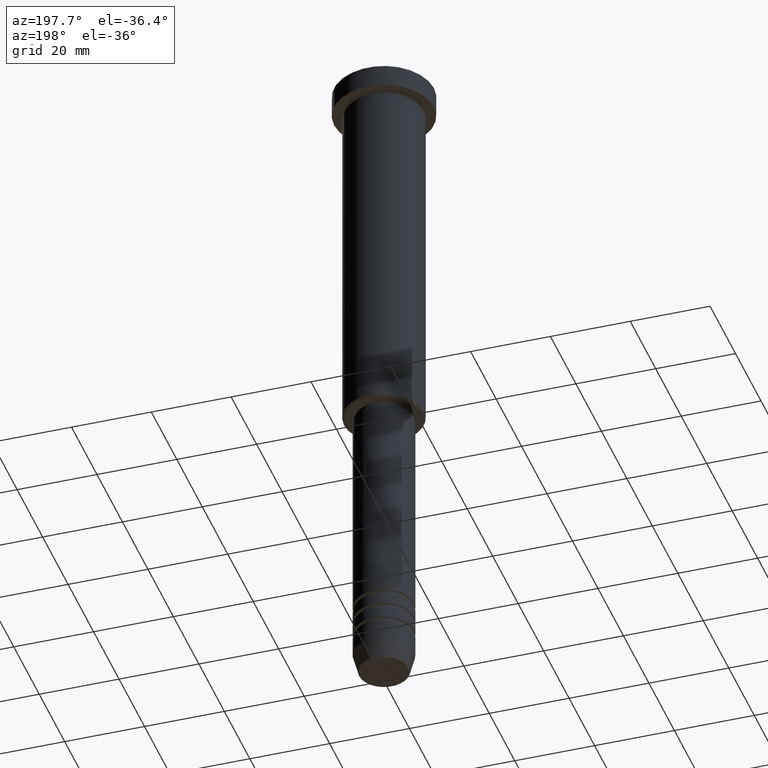
[diagram: clean part render]
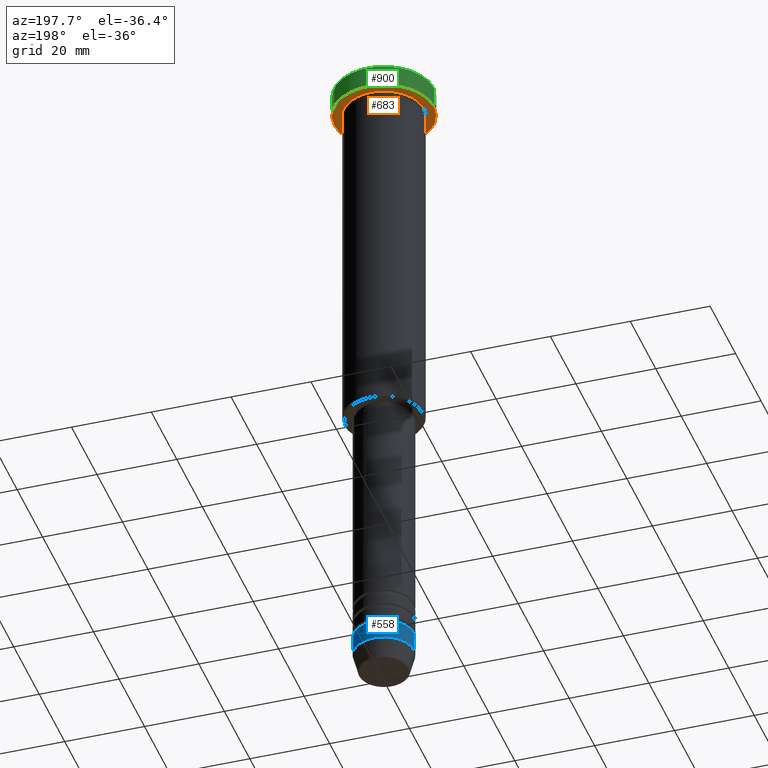
[diagram: same view with three faces highlighted in distinct colors, each labeled with its STEP entity id]
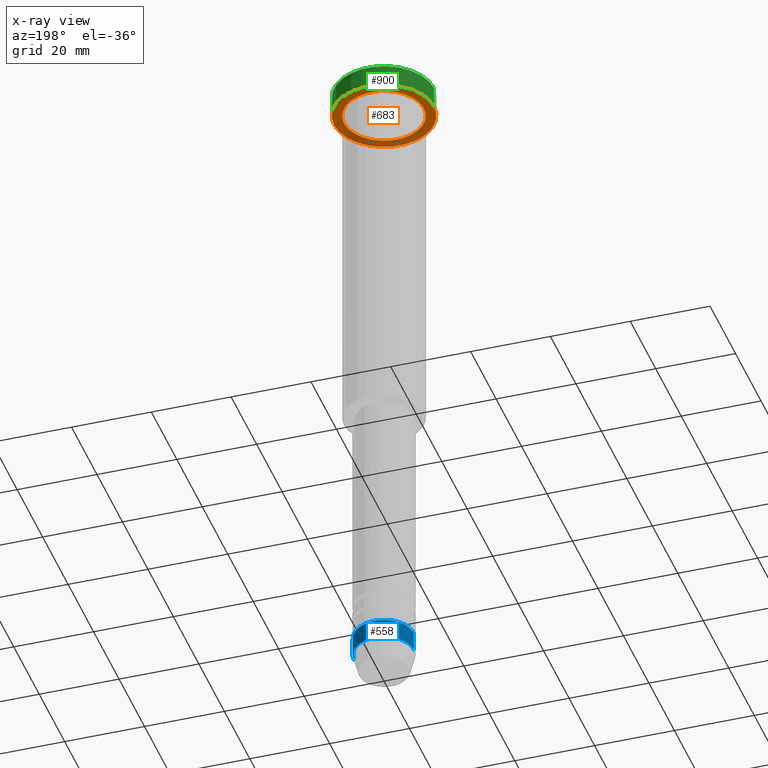
[diagram: x-ray of the same camera — body ghosted, the three highlighted faces saturated]
A machine part, auxiliary view with three faces highlighted in distinct colors.
The next image is the same camera in x-ray (body ghosted, the three faces saturated) — at least one of them is partly hidden behind the body in this view.
Their STEP definitions:

[orange] entity #683 — the highlighted planar face has unit normal (0, 0, -1).
#75 = CIRCLE ( 'NONE', #224, 10.00000000000000000 ) ;
#88 = CIRCLE ( 'NONE', #685, 12.50000000000000000 ) ;
#117 = EDGE_LOOP ( 'NONE', ( #125, #1034 ) ) ;
#125 = ORIENTED_EDGE ( 'NONE', *, *, #214, .T. ) ;
#137 = CARTESIAN_POINT ( 'NONE',  ( 0.000000000000000000, 0.000000000000000000, -5.999999999999996447 ) ) ;
#147 = CARTESIAN_POINT ( 'NONE',  ( -12.50000000000000000, 1.530808498934191521E-15, -5.999999999999996447 ) ) ;
#176 = FACE_BOUND ( 'NONE', #117, .T. ) ;
#178 = CARTESIAN_POINT ( 'NONE',  ( 0.000000000000000000, 0.000000000000000000, -5.999999999999996447 ) ) ;
#214 = EDGE_CURVE ( 'NONE', #556, #629, #665, .T. ) ;
#224 = AXIS2_PLACEMENT_3D ( 'NONE', #178, #544, #912 ) ;
#235 = CARTESIAN_POINT ( 'NONE',  ( 10.00000000000000000, 1.224646799147353256E-15, -5.999999999999996447 ) ) ;
#397 = EDGE_CURVE ( 'NONE', #629, #556, #75, .T. ) ;
#449 = DIRECTION ( 'NONE',  ( -1.000000000000000000, 0.000000000000000000, -0.000000000000000000 ) ) ;
#468 = FACE_OUTER_BOUND ( 'NONE', #889, .T. ) ;
#529 = DIRECTION ( 'NONE',  ( -1.000000000000000000, 0.000000000000000000, 0.000000000000000000 ) ) ;
#544 = DIRECTION ( 'NONE',  ( -0.000000000000000000, -0.000000000000000000, 1.000000000000000000 ) ) ;
#547 = CARTESIAN_POINT ( 'NONE',  ( 0.000000000000000000, 12.50000000000000000, -5.999999999999996447 ) ) ;
#554 = PLANE ( 'NONE',  #703 ) ;
#556 = VERTEX_POINT ( 'NONE', #607 ) ;
#569 = DIRECTION ( 'NONE',  ( 1.000000000000000000, 0.000000000000000000, 0.000000000000000000 ) ) ;
#580 = VERTEX_POINT ( 'NONE', #147 ) ;
#584 = CARTESIAN_POINT ( 'NONE',  ( 0.000000000000000000, 0.000000000000000000, -5.999999999999996447 ) ) ;
#601 = VERTEX_POINT ( 'NONE', #890 ) ;
#607 = CARTESIAN_POINT ( 'NONE',  ( -10.00000000000000000, 0.000000000000000000, -5.999999999999996447 ) ) ;
#629 = VERTEX_POINT ( 'NONE', #235 ) ;
#648 = ORIENTED_EDGE ( 'NONE', *, *, #980, .F. ) ;
#653 = CARTESIAN_POINT ( 'NONE',  ( 0.000000000000000000, 0.000000000000000000, -5.999999999999996447 ) ) ;
#665 = CIRCLE ( 'NONE', #689, 10.00000000000000000 ) ;
#680 = DIRECTION ( 'NONE',  ( -0.000000000000000000, -0.000000000000000000, 1.000000000000000000 ) ) ;
#683 = ADVANCED_FACE ( 'NONE', ( #176, #468 ), #554, .T. ) ;
#685 = AXIS2_PLACEMENT_3D ( 'NONE', #653, #680, #569 ) ;
#689 = AXIS2_PLACEMENT_3D ( 'NONE', #584, #1168, #529 ) ;
#703 = AXIS2_PLACEMENT_3D ( 'NONE', #547, #807, #449 ) ;
#763 = AXIS2_PLACEMENT_3D ( 'NONE', #137, #778, #871 ) ;
#778 = DIRECTION ( 'NONE',  ( -0.000000000000000000, -0.000000000000000000, 1.000000000000000000 ) ) ;
#807 = DIRECTION ( 'NONE',  ( 0.000000000000000000, 0.000000000000000000, -1.000000000000000000 ) ) ;
#809 = ORIENTED_EDGE ( 'NONE', *, *, #896, .F. ) ;
#871 = DIRECTION ( 'NONE',  ( 1.000000000000000000, 0.000000000000000000, 0.000000000000000000 ) ) ;
#889 = EDGE_LOOP ( 'NONE', ( #648, #809 ) ) ;
#890 = CARTESIAN_POINT ( 'NONE',  ( 12.50000000000000000, 0.000000000000000000, -5.999999999999996447 ) ) ;
#896 = EDGE_CURVE ( 'NONE', #580, #601, #88, .T. ) ;
#912 = DIRECTION ( 'NONE',  ( -1.000000000000000000, 0.000000000000000000, 0.000000000000000000 ) ) ;
#980 = EDGE_CURVE ( 'NONE', #601, #580, #1097, .T. ) ;
#1034 = ORIENTED_EDGE ( 'NONE', *, *, #397, .T. ) ;
#1097 = CIRCLE ( 'NONE', #763, 12.50000000000000000 ) ;
#1168 = DIRECTION ( 'NONE',  ( -0.000000000000000000, -0.000000000000000000, 1.000000000000000000 ) ) ;

[blue] entity #558 — the highlighted cylindrical surface (edge-blend (fillet) strip) has radius 7.5 mm, axis along (-0, -0, 1).
#17 = DIRECTION ( 'NONE',  ( -0.000000000000000000, -0.000000000000000000, 1.000000000000000000 ) ) ;
#110 = VECTOR ( 'NONE', #770, 1000.000000000000000 ) ;
#173 = DIRECTION ( 'NONE',  ( 1.000000000000000000, 0.000000000000000000, 0.000000000000000000 ) ) ;
#177 = EDGE_CURVE ( 'NONE', #197, #670, #498, .T. ) ;
#197 = VERTEX_POINT ( 'NONE', #422 ) ;
#201 = CARTESIAN_POINT ( 'NONE',  ( 0.000000000000000000, 0.000000000000000000, -160.9999999999999716 ) ) ;
#267 = LINE ( 'NONE', #1082, #953 ) ;
#283 = CIRCLE ( 'NONE', #736, 7.500000000000000000 ) ;
#291 = VERTEX_POINT ( 'NONE', #374 ) ;
#349 = CARTESIAN_POINT ( 'NONE',  ( 0.000000000000000000, 0.000000000000000000, 0.000000000000000000 ) ) ;
#366 = DIRECTION ( 'NONE',  ( -0.000000000000000000, -0.000000000000000000, 1.000000000000000000 ) ) ;
#374 = CARTESIAN_POINT ( 'NONE',  ( -7.500000000000000000, 9.184850993605147944E-16, -160.9999999999999716 ) ) ;
#389 = DIRECTION ( 'NONE',  ( -0.000000000000000000, -0.000000000000000000, 1.000000000000000000 ) ) ;
#391 = EDGE_CURVE ( 'NONE', #197, #907, #283, .T. ) ;
#411 = CARTESIAN_POINT ( 'NONE',  ( 7.500000000000000000, 0.000000000000000000, 0.000000000000000000 ) ) ;
#422 = CARTESIAN_POINT ( 'NONE',  ( 7.500000000000000000, 0.000000000000000000, -165.9999999999999716 ) ) ;
#464 = CARTESIAN_POINT ( 'NONE',  ( 7.500000000000000000, 0.000000000000000000, -160.9999999999999716 ) ) ;
#498 = LINE ( 'NONE', #411, #110 ) ;
#512 = DIRECTION ( 'NONE',  ( -0.000000000000000000, -0.000000000000000000, 1.000000000000000000 ) ) ;
#558 = ADVANCED_FACE ( 'NONE', ( #978 ), #966, .T. ) ;
#617 = ORIENTED_EDGE ( 'NONE', *, *, #391, .T. ) ;
#654 = ORIENTED_EDGE ( 'NONE', *, *, #1068, .T. ) ;
#670 = VERTEX_POINT ( 'NONE', #464 ) ;
#695 = ORIENTED_EDGE ( 'NONE', *, *, #177, .F. ) ;
#734 = DIRECTION ( 'NONE',  ( 1.000000000000000000, 0.000000000000000000, 0.000000000000000000 ) ) ;
#736 = AXIS2_PLACEMENT_3D ( 'NONE', #993, #389, #173 ) ;
#741 = CIRCLE ( 'NONE', #818, 7.500000000000000000 ) ;
#770 = DIRECTION ( 'NONE',  ( -0.000000000000000000, -0.000000000000000000, 1.000000000000000000 ) ) ;
#818 = AXIS2_PLACEMENT_3D ( 'NONE', #201, #17, #734 ) ;
#907 = VERTEX_POINT ( 'NONE', #1015 ) ;
#921 = ORIENTED_EDGE ( 'NONE', *, *, #1154, .F. ) ;
#953 = VECTOR ( 'NONE', #366, 1000.000000000000000 ) ;
#966 = CYLINDRICAL_SURFACE ( 'NONE', #1021, 7.500000000000000000 ) ;
#978 = FACE_OUTER_BOUND ( 'NONE', #1057, .T. ) ;
#993 = CARTESIAN_POINT ( 'NONE',  ( 0.000000000000000000, 0.000000000000000000, -165.9999999999999716 ) ) ;
#1015 = CARTESIAN_POINT ( 'NONE',  ( -7.500000000000000000, 9.184850993605147944E-16, -165.9999999999999716 ) ) ;
#1021 = AXIS2_PLACEMENT_3D ( 'NONE', #349, #512, #1053 ) ;
#1053 = DIRECTION ( 'NONE',  ( 1.000000000000000000, 0.000000000000000000, 0.000000000000000000 ) ) ;
#1057 = EDGE_LOOP ( 'NONE', ( #617, #654, #921, #695 ) ) ;
#1068 = EDGE_CURVE ( 'NONE', #907, #291, #267, .T. ) ;
#1082 = CARTESIAN_POINT ( 'NONE',  ( -7.500000000000000000, 9.184850993605147944E-16, 0.000000000000000000 ) ) ;
#1154 = EDGE_CURVE ( 'NONE', #670, #291, #741, .T. ) ;

[green] entity #900 — the highlighted cylindrical surface (partial cylindrical patch) has radius 12.5 mm, axis along (-0, -0, 1).
#78 = CARTESIAN_POINT ( 'NONE',  ( -12.50000000000000000, 1.530808498934191521E-15, 0.000000000000000000 ) ) ;
#82 = CARTESIAN_POINT ( 'NONE',  ( -12.50000000000000000, 1.530808498934191521E-15, -0.4999999999999917843 ) ) ;
#123 = EDGE_LOOP ( 'NONE', ( #143, #673, #712, #702 ) ) ;
#135 = EDGE_CURVE ( 'NONE', #580, #290, #687, .T. ) ;
#137 = CARTESIAN_POINT ( 'NONE',  ( 0.000000000000000000, 0.000000000000000000, -5.999999999999996447 ) ) ;
#143 = ORIENTED_EDGE ( 'NONE', *, *, #980, .T. ) ;
#147 = CARTESIAN_POINT ( 'NONE',  ( -12.50000000000000000, 1.530808498934191521E-15, -5.999999999999996447 ) ) ;
#158 = CARTESIAN_POINT ( 'NONE',  ( 0.000000000000000000, 0.000000000000000000, -0.4999999999999917843 ) ) ;
#245 = VECTOR ( 'NONE', #417, 1000.000000000000000 ) ;
#250 = DIRECTION ( 'NONE',  ( 1.000000000000000000, 0.000000000000000000, 0.000000000000000000 ) ) ;
#263 = AXIS2_PLACEMENT_3D ( 'NONE', #1033, #1039, #297 ) ;
#277 = EDGE_CURVE ( 'NONE', #601, #652, #924, .T. ) ;
#290 = VERTEX_POINT ( 'NONE', #82 ) ;
#297 = DIRECTION ( 'NONE',  ( 1.000000000000000000, 0.000000000000000000, 0.000000000000000000 ) ) ;
#417 = DIRECTION ( 'NONE',  ( -0.000000000000000000, -0.000000000000000000, 1.000000000000000000 ) ) ;
#488 = FACE_OUTER_BOUND ( 'NONE', #123, .T. ) ;
#580 = VERTEX_POINT ( 'NONE', #147 ) ;
#601 = VERTEX_POINT ( 'NONE', #890 ) ;
#652 = VERTEX_POINT ( 'NONE', #697 ) ;
#673 = ORIENTED_EDGE ( 'NONE', *, *, #135, .T. ) ;
#687 = LINE ( 'NONE', #78, #245 ) ;
#697 = CARTESIAN_POINT ( 'NONE',  ( 12.50000000000000000, 0.000000000000000000, -0.4999999999999917843 ) ) ;
#702 = ORIENTED_EDGE ( 'NONE', *, *, #277, .F. ) ;
#712 = ORIENTED_EDGE ( 'NONE', *, *, #1020, .T. ) ;
#719 = DIRECTION ( 'NONE',  ( 0.000000000000000000, 0.000000000000000000, -1.000000000000000000 ) ) ;
#763 = AXIS2_PLACEMENT_3D ( 'NONE', #137, #778, #871 ) ;
#778 = DIRECTION ( 'NONE',  ( -0.000000000000000000, -0.000000000000000000, 1.000000000000000000 ) ) ;
#801 = VECTOR ( 'NONE', #830, 1000.000000000000000 ) ;
#830 = DIRECTION ( 'NONE',  ( -0.000000000000000000, -0.000000000000000000, 1.000000000000000000 ) ) ;
#865 = CYLINDRICAL_SURFACE ( 'NONE', #263, 12.50000000000000000 ) ;
#871 = DIRECTION ( 'NONE',  ( 1.000000000000000000, 0.000000000000000000, 0.000000000000000000 ) ) ;
#881 = AXIS2_PLACEMENT_3D ( 'NONE', #158, #719, #250 ) ;
#890 = CARTESIAN_POINT ( 'NONE',  ( 12.50000000000000000, 0.000000000000000000, -5.999999999999996447 ) ) ;
#900 = ADVANCED_FACE ( 'NONE', ( #488 ), #865, .T. ) ;
#924 = LINE ( 'NONE', #1091, #801 ) ;
#980 = EDGE_CURVE ( 'NONE', #601, #580, #1097, .T. ) ;
#1003 = CIRCLE ( 'NONE', #881, 12.50000000000000000 ) ;
#1020 = EDGE_CURVE ( 'NONE', #290, #652, #1003, .T. ) ;
#1033 = CARTESIAN_POINT ( 'NONE',  ( 0.000000000000000000, 0.000000000000000000, 0.000000000000000000 ) ) ;
#1039 = DIRECTION ( 'NONE',  ( -0.000000000000000000, -0.000000000000000000, 1.000000000000000000 ) ) ;
#1091 = CARTESIAN_POINT ( 'NONE',  ( 12.50000000000000000, 0.000000000000000000, 0.000000000000000000 ) ) ;
#1097 = CIRCLE ( 'NONE', #763, 12.50000000000000000 ) ;